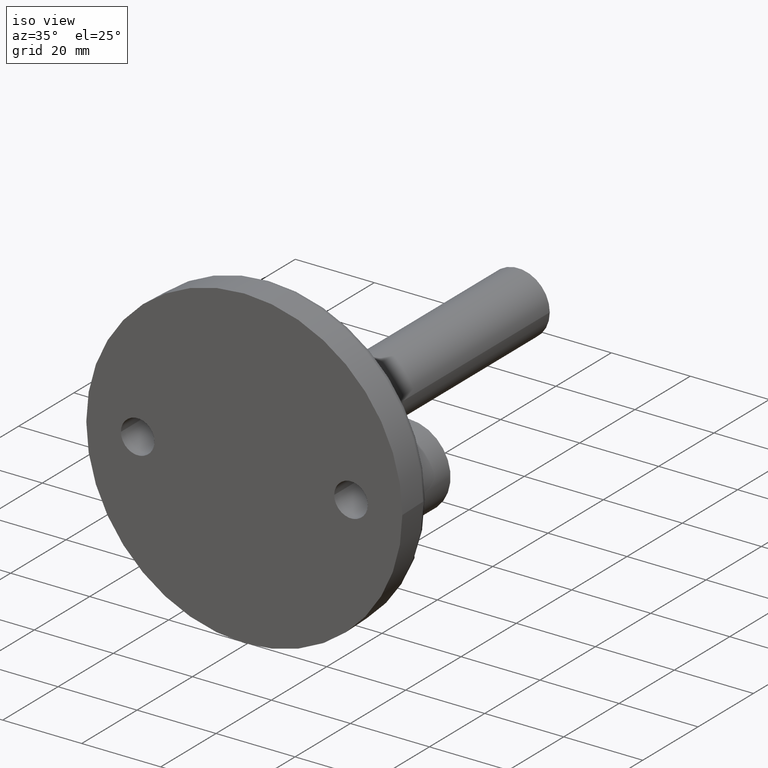
[diagram: clean part render]
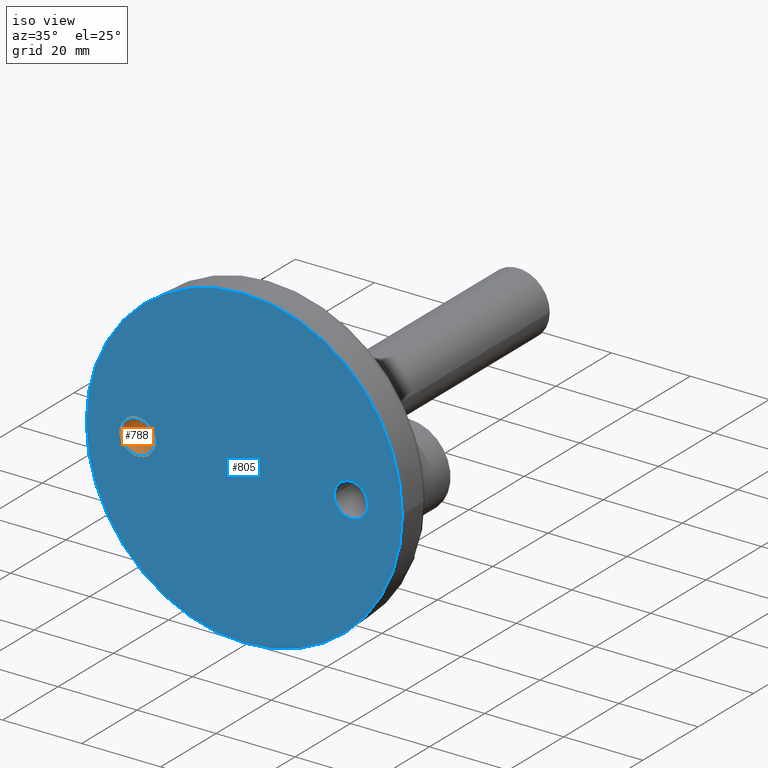
[diagram: same view with the hole feature highlighted: cylindrical wall and planar end face, labeled with their STEP entity ids]
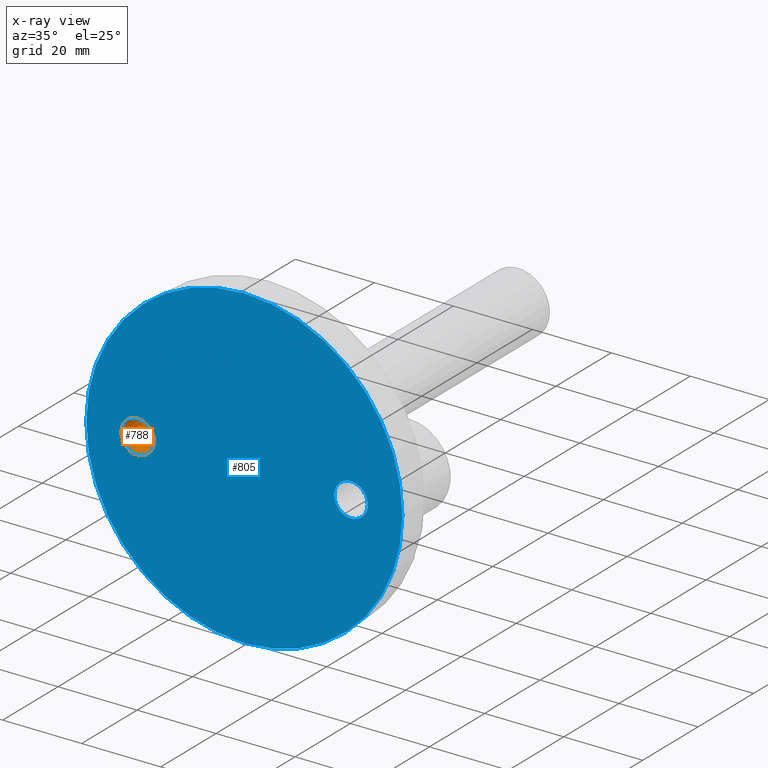
[diagram: x-ray of the same camera — body ghosted, the hole faces saturated]
A machine part, iso view. The highlighted faces form one hole feature of diameter 8.5 mm: the cylindrical wall (entity #788, orange) and its adjacent planar end face (entity #805, blue) — they share a circular edge in the B-rep.
The next image is the same camera in x-ray (body ghosted, the hole faces saturated) — the bore reads through the body.
Wall:
#54=CYLINDRICAL_SURFACE('',#925,4.25);
#130=FACE_OUTER_BOUND('',#176,.T.);
#176=EDGE_LOOP('',(#594,#595,#596,#597));
#222=LINE('',#1474,#249);
#249=VECTOR('',#1074,4.25);
#299=CIRCLE('',#926,4.25);
#300=CIRCLE('',#927,4.25);
#359=VERTEX_POINT('',#1471);
#360=VERTEX_POINT('',#1473);
#453=EDGE_CURVE('',#359,#359,#299,.T.);
#454=EDGE_CURVE('',#359,#360,#222,.T.);
#455=EDGE_CURVE('',#360,#360,#300,.T.);
#594=ORIENTED_EDGE('',*,*,#453,.F.);
#595=ORIENTED_EDGE('',*,*,#454,.T.);
#596=ORIENTED_EDGE('',*,*,#455,.F.);
#597=ORIENTED_EDGE('',*,*,#454,.F.);
#788=ADVANCED_FACE('',(#130),#54,.F.);
#925=AXIS2_PLACEMENT_3D('',#1470,#1070,#1071);
#926=AXIS2_PLACEMENT_3D('',#1472,#1072,#1073);
#927=AXIS2_PLACEMENT_3D('',#1475,#1075,#1076);
#1070=DIRECTION('center_axis',(0.,-1.,0.));
#1071=DIRECTION('ref_axis',(1.,0.,0.));
#1072=DIRECTION('center_axis',(0.,-1.,0.));
#1073=DIRECTION('ref_axis',(1.,0.,0.));
#1074=DIRECTION('',(0.,-1.,0.));
#1075=DIRECTION('center_axis',(0.,1.,0.));
#1076=DIRECTION('ref_axis',(1.,0.,0.));
#1470=CARTESIAN_POINT('Origin',(-27.,10.5,0.));
#1471=CARTESIAN_POINT('',(-31.25,21.,5.20457700374478E-16));
#1472=CARTESIAN_POINT('Origin',(-27.,21.,0.));
#1473=CARTESIAN_POINT('',(-31.25,0.,5.20457700374478E-16));
#1474=CARTESIAN_POINT('',(-31.25,10.5,-5.20474889637625E-16));
#1475=CARTESIAN_POINT('Origin',(-27.,0.,0.));
End face:
#30=FACE_BOUND('',#197,.T.);
#31=FACE_BOUND('',#198,.T.);
#42=PLANE('',#952);
#147=FACE_OUTER_BOUND('',#196,.T.);
#196=EDGE_LOOP('',(#690));
#197=EDGE_LOOP('',(#691));
#198=EDGE_LOOP('',(#692));
#271=CIRCLE('',#885,40.);
#300=CIRCLE('',#927,4.25);
#302=CIRCLE('',#930,4.25);
#317=VERTEX_POINT('',#1203);
#360=VERTEX_POINT('',#1473);
#362=VERTEX_POINT('',#1479);
#400=EDGE_CURVE('',#317,#317,#271,.T.);
#455=EDGE_CURVE('',#360,#360,#300,.T.);
#458=EDGE_CURVE('',#362,#362,#302,.T.);
#690=ORIENTED_EDGE('',*,*,#400,.T.);
#691=ORIENTED_EDGE('',*,*,#455,.T.);
#692=ORIENTED_EDGE('',*,*,#458,.T.);
#805=ADVANCED_FACE('',(#147,#30,#31),#42,.T.);
#885=AXIS2_PLACEMENT_3D('',#1204,#985,#986);
#927=AXIS2_PLACEMENT_3D('',#1475,#1075,#1076);
#930=AXIS2_PLACEMENT_3D('',#1481,#1082,#1083);
#952=AXIS2_PLACEMENT_3D('',#1572,#1135,#1136);
#985=DIRECTION('center_axis',(0.,-1.,0.));
#986=DIRECTION('ref_axis',(-1.,0.,0.));
#1075=DIRECTION('center_axis',(0.,1.,0.));
#1076=DIRECTION('ref_axis',(1.,0.,0.));
#1082=DIRECTION('center_axis',(0.,1.,0.));
#1083=DIRECTION('ref_axis',(1.,0.,0.));
#1135=DIRECTION('center_axis',(0.,-1.,0.));
#1136=DIRECTION('ref_axis',(0.,0.,-1.));
#1203=CARTESIAN_POINT('',(40.,0.,4.89842541528951E-15));
#1204=CARTESIAN_POINT('Origin',(0.,0.,0.));
#1473=CARTESIAN_POINT('',(-31.25,0.,5.20457700374478E-16));
#1475=CARTESIAN_POINT('Origin',(-27.,0.,0.));
#1479=CARTESIAN_POINT('',(22.75,0.,5.20457700374478E-16));
#1481=CARTESIAN_POINT('Origin',(27.,0.,0.));
#1572=CARTESIAN_POINT('Origin',(-20.,0.,-4.89842541528951E-15));